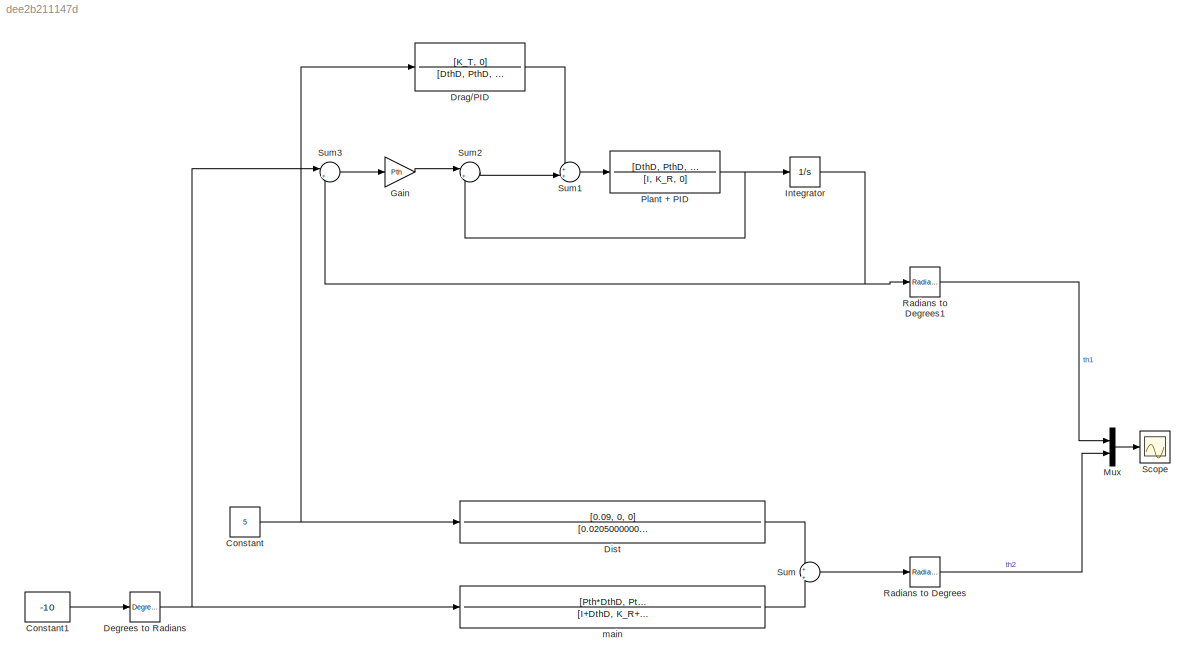
MODEL slx_dee2b211147d
KIND model
CONFIG AbsTol = auto
CONFIG EnableMultiTasking = off
CONFIG FixedStep = auto
CONFIG MaxStep = auto
CONFIG MinStep = auto
CONFIG RelTol = 1e-3
CONFIG SampleTimeConstraint = Unconstrained
CONFIG SolverName = VariableStepAuto
CONFIG StartTime = 0.0
CONFIG StopTime = 20
BLOCK [Constant] Constant
  Value = 5
BLOCK [Constant] Constant1
  Value = -10
BLOCK [Reference] Degrees to Radians  REF=simulink_extras/Transformations/Degrees to
Radians
  Ports = [1, 1]
  SourceBlock = simulink_extras/Transformations/Degrees to\nRadians
  SourceProductBaseCode = SL
  SourceType = DegreesToRadians
BLOCK [TransferFcn] Dist
  Denominator = [0.0205000000000000	0.273800000000000	1.02500000000000	0.325000000000000	0]
  Numerator = [0.09, 0, 0]
BLOCK [TransferFcn] Drag//PID
  Denominator = [DthD, PthD, IthD]
  Numerator = [K_T, 0]
BLOCK [Gain] Gain
  Gain = Pth
BLOCK [Integrator] Integrator
  Ports = [1, 1]
BLOCK [Mux] Mux
  DisplayOption = bar
  Inputs = 2
  Ports = [2, 1]
BLOCK [TransferFcn] Plant + PID
  Denominator = [I, K_R, 0]
  Numerator = [DthD, PthD, IthD]
BLOCK [Reference] Radians to Degrees  REF=simulink_extras/Transformations/Radians
to Degrees
  Ports = [1, 1]
  SourceBlock = simulink_extras/Transformations/Radians\nto Degrees
  SourceProductBaseCode = SL
  SourceType = RadiansToDegrees
BLOCK [Reference] Radians to Degrees1  REF=simulink_extras/Transformations/Radians
to Degrees
  Ports = [1, 1]
  SourceBlock = simulink_extras/Transformations/Radians\nto Degrees
  SourceProductBaseCode = SL
  SourceType = RadiansToDegrees
BLOCK [Scope] Scope
  Floating = off
  NumInputPorts = 1
  Ports = [1]
  ScopeSpecificationString = Simulink.scopes.TimeScopeBlockCfg('CurrentConfiguration', extmgr.ConfigurationSet(extmgr.Configuration('Core','General UI',true),extmgr.Configuration('Core','Source UI',true),extmgr.Configuration('Sources','WiredSimulink',true),extmgr.Configuration('Visuals','Time Domain',true,'SerializedDisplays',{struct('MinYLimReal','-12.84373','MaxYLimReal','15.87624','YLabelReal','','MinYLimMag','0.00000','Ma...<+1536ch>
BLOCK [Sum] Sum
  Inputs = +|+
  Ports = [2, 1]
BLOCK [Sum] Sum1
  Inputs = ++|
  Ports = [2, 1]
BLOCK [Sum] Sum2
  Inputs = |+-
  Ports = [2, 1]
BLOCK [Sum] Sum3
  Inputs = |+-
  Ports = [2, 1]
BLOCK [TransferFcn] main
  Denominator = [I+DthD, K_R+PthD+Pth*DthD, IthD+Pth*PthD, Pth*IthD]
  Numerator = [Pth*DthD, Pth*PthD, Pth*IthD]
LINE Constant1:1 -> Degrees to Radians:1
NET Constant:1 -> Dist:1, Drag//PID:1
NET Degrees to Radians:1 -> Sum3:1, main:1
LINE Dist:1 -> Sum:1
LINE Drag//PID:1 -> Sum1:1
LINE Gain:1 -> Sum2:1
NET Integrator:1 -> Radians to Degrees1:1, Sum3:2
LINE Mux:1 -> Scope:1
NET Plant + PID:1 -> Integrator:1, Sum2:2
LINE Radians to Degrees1:1 -> Mux:1
LINE Radians to Degrees:1 -> Mux:2
LINE Sum1:1 -> Plant + PID:1
LINE Sum2:1 -> Sum1:2
LINE Sum3:1 -> Gain:1
LINE Sum:1 -> Radians to Degrees:1
LINE main:1 -> Sum:2
note: NET lines group one-source signal fan-out (src -> all destinations, sorted); 1:1 wires keep LINE
